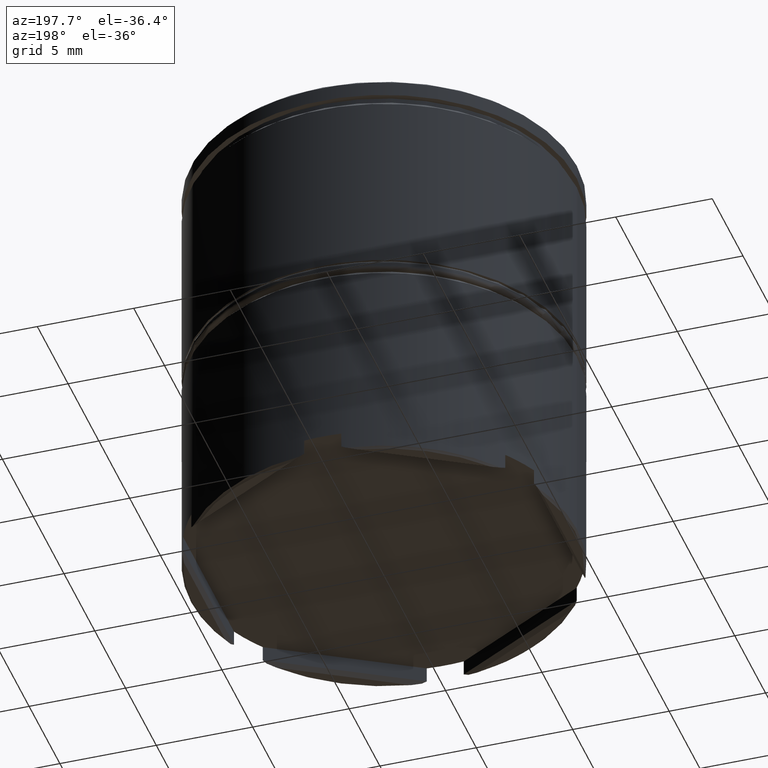
[diagram: clean part render]
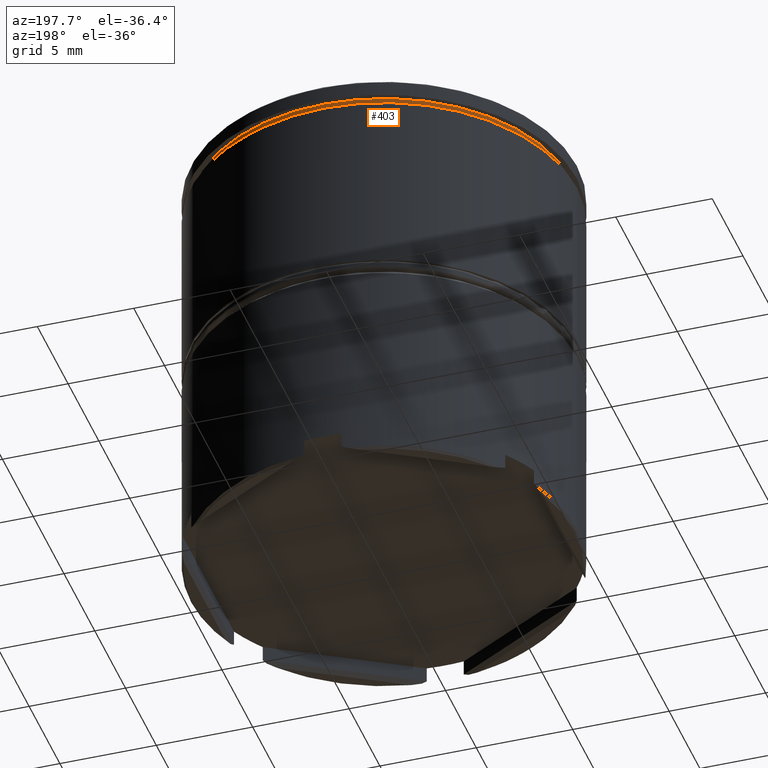
[diagram: same view with one face highlighted and labeled with its STEP entity id]
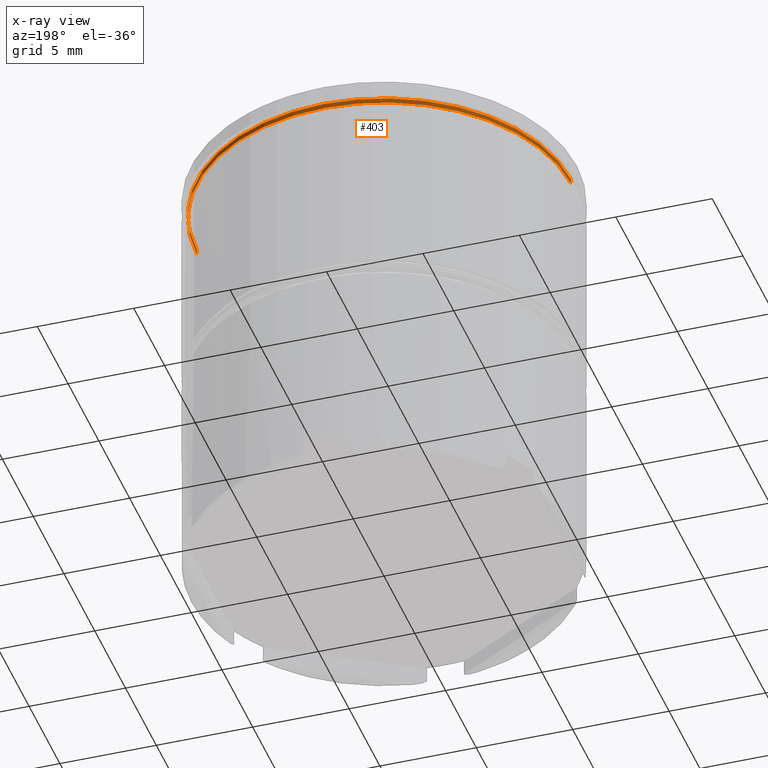
[diagram: x-ray of the same camera — body ghosted, the highlighted face saturated]
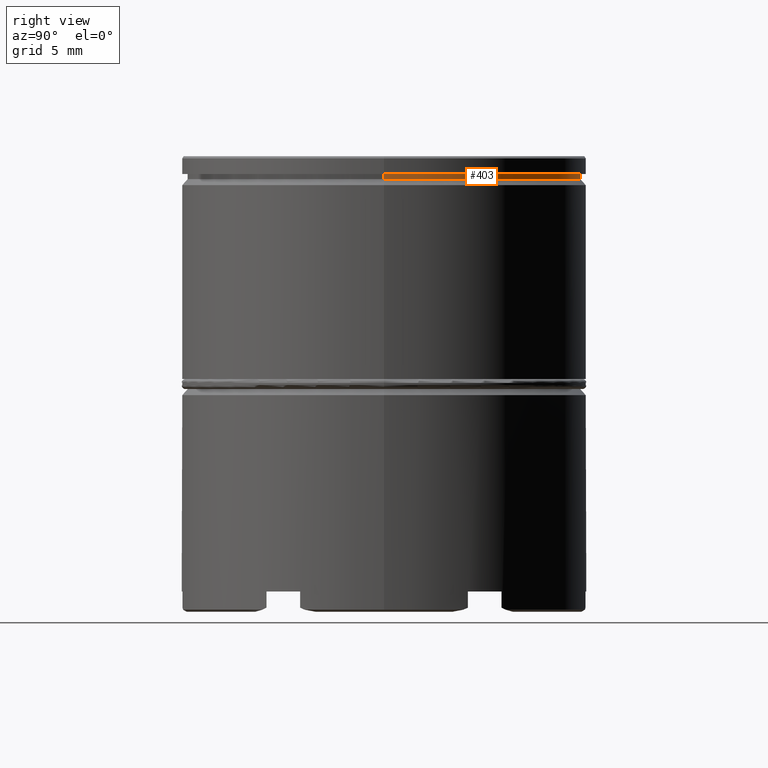
[diagram: same view with one face highlighted and labeled with its STEP entity id]
A machine part, auxiliary view. The second image highlights one B-rep face of the part: STEP entity #403.
The next image is the same camera in x-ray: the body ghosted, the highlighted face saturated — about 2% of this face is hidden behind the body in this view.
A second angle (right view) of the same face is appended — the face is thin or edge-on in the first view.
In plain terms, the highlighted cylindrical surface (partial cylindrical patch) has radius 9.7 mm, axis along (-0, -0, 1).
Its self-contained STEP definition (entity closure, byte-faithful):
#8 = VECTOR ( 'NONE', #366, 1000.000000000000000 ) ;
#52 = CARTESIAN_POINT ( 'NONE',  ( -9.700000000000001066, 1.187907395172932594E-15, -0.8749999999999998890 ) ) ;
#59 = CARTESIAN_POINT ( 'NONE',  ( 9.700000000000001066, 0.000000000000000000, -1.125000000000000222 ) ) ;
#124 = ORIENTED_EDGE ( 'NONE', *, *, #1445, .F. ) ;
#140 = CARTESIAN_POINT ( 'NONE',  ( 9.700000000000001066, 0.000000000000000000, 0.000000000000000000 ) ) ;
#142 = FACE_OUTER_BOUND ( 'NONE', #554, .T. ) ;
#193 = CARTESIAN_POINT ( 'NONE',  ( 9.700000000000001066, 0.000000000000000000, -0.8749999999999998890 ) ) ;
#280 = EDGE_CURVE ( 'NONE', #405, #1201, #1239, .T. ) ;
#366 = DIRECTION ( 'NONE',  ( -0.000000000000000000, -0.000000000000000000, 1.000000000000000000 ) ) ;
#400 = CYLINDRICAL_SURFACE ( 'NONE', #1622, 9.700000000000001066 ) ;
#403 = ADVANCED_FACE ( 'NONE', ( #142 ), #400, .T. ) ;
#405 = VERTEX_POINT ( 'NONE', #919 ) ;
#410 = DIRECTION ( 'NONE',  ( 1.000000000000000000, 0.000000000000000000, 0.000000000000000000 ) ) ;
#442 = DIRECTION ( 'NONE',  ( 1.000000000000000000, 0.000000000000000000, 0.000000000000000000 ) ) ;
#505 = CIRCLE ( 'NONE', #1142, 9.700000000000001066 ) ;
#550 = ORIENTED_EDGE ( 'NONE', *, *, #566, .F. ) ;
#554 = EDGE_LOOP ( 'NONE', ( #939, #789, #550, #124 ) ) ;
#566 = EDGE_CURVE ( 'NONE', #1041, #1201, #505, .T. ) ;
#617 = VECTOR ( 'NONE', #1133, 1000.000000000000000 ) ;
#625 = DIRECTION ( 'NONE',  ( -0.000000000000000000, -0.000000000000000000, 1.000000000000000000 ) ) ;
#688 = AXIS2_PLACEMENT_3D ( 'NONE', #1376, #625, #1008 ) ;
#789 = ORIENTED_EDGE ( 'NONE', *, *, #280, .T. ) ;
#812 = VERTEX_POINT ( 'NONE', #59 ) ;
#838 = DIRECTION ( 'NONE',  ( -0.000000000000000000, -0.000000000000000000, 1.000000000000000000 ) ) ;
#875 = CARTESIAN_POINT ( 'NONE',  ( -9.700000000000001066, 1.187907395172932594E-15, 0.000000000000000000 ) ) ;
#919 = CARTESIAN_POINT ( 'NONE',  ( -9.700000000000001066, 1.187907395172932594E-15, -1.125000000000000222 ) ) ;
#926 = CARTESIAN_POINT ( 'NONE',  ( 0.000000000000000000, 0.000000000000000000, -0.8749999999999998890 ) ) ;
#939 = ORIENTED_EDGE ( 'NONE', *, *, #1187, .T. ) ;
#1008 = DIRECTION ( 'NONE',  ( 1.000000000000000000, 0.000000000000000000, 0.000000000000000000 ) ) ;
#1041 = VERTEX_POINT ( 'NONE', #193 ) ;
#1133 = DIRECTION ( 'NONE',  ( -0.000000000000000000, -0.000000000000000000, 1.000000000000000000 ) ) ;
#1142 = AXIS2_PLACEMENT_3D ( 'NONE', #926, #838, #442 ) ;
#1155 = DIRECTION ( 'NONE',  ( -0.000000000000000000, -0.000000000000000000, 1.000000000000000000 ) ) ;
#1187 = EDGE_CURVE ( 'NONE', #812, #405, #1402, .T. ) ;
#1201 = VERTEX_POINT ( 'NONE', #52 ) ;
#1239 = LINE ( 'NONE', #875, #8 ) ;
#1376 = CARTESIAN_POINT ( 'NONE',  ( 0.000000000000000000, 0.000000000000000000, -1.125000000000000222 ) ) ;
#1402 = CIRCLE ( 'NONE', #688, 9.700000000000001066 ) ;
#1445 = EDGE_CURVE ( 'NONE', #812, #1041, #1505, .T. ) ;
#1505 = LINE ( 'NONE', #140, #617 ) ;
#1622 = AXIS2_PLACEMENT_3D ( 'NONE', #1628, #1155, #410 ) ;
#1628 = CARTESIAN_POINT ( 'NONE',  ( 0.000000000000000000, 0.000000000000000000, 0.000000000000000000 ) ) ;